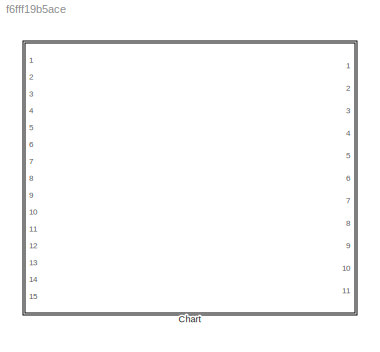
MODEL slx_f6fff19b5ace
KIND model
CONFIG AbsTol = auto
CONFIG FixedStep = auto
CONFIG MaxStep = auto
CONFIG MinStep = auto
CONFIG RelTol = 1e-3
CONFIG SampleTimeConstraint = Unconstrained
CONFIG Solver = VariableStepAuto
CONFIG SolverMode = Auto
CONFIG SolverName = VariableStepAuto
CONFIG StartTime = 0.0
CONFIG StopTime = 10.0
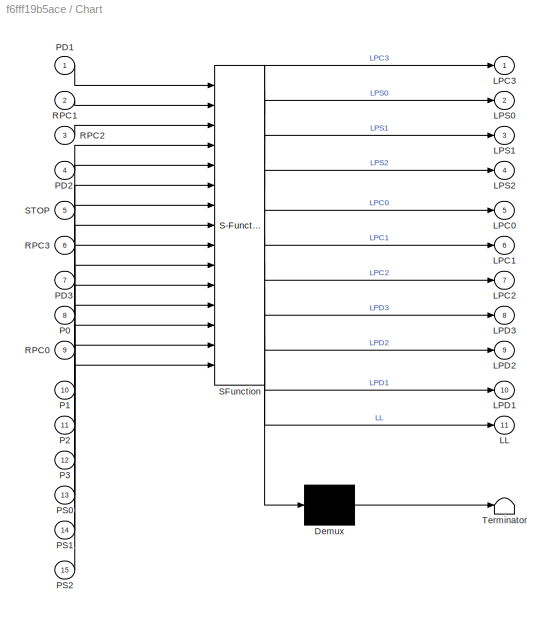
BLOCK [SubSystem] Chart
  ErrorFcn = Stateflow.Translate.translate
  PermitHierarchicalResolution = ExplicitOnly
  Ports = [15, 11]
  RequestExecContextInheritance = off
  SFBlockType = Chart
  TreatAsAtomicUnit = on
  Variant = off
BLOCK [Demux] Chart/ Demux 
  Outputs = 1
  Ports = [1, 1]
BLOCK [S-Function] Chart/ SFunction 
  EnableBusSupport = on
  FunctionName = sf_sfun
  PortCounts = [15 12]
  Ports = [15, 12]
  SFunctionDeploymentMode = off
  Tag = Stateflow S-Function Button_detection_Storage_B 3
BLOCK [Terminator] Chart/ Terminator 
BLOCK [Outport] Chart/LL
  IconDisplay = Port number
  Port = 11
BLOCK [Outport] Chart/LPC0
  IconDisplay = Port number
  Port = 5
BLOCK [Outport] Chart/LPC1
  IconDisplay = Port number
  Port = 6
BLOCK [Outport] Chart/LPC2
  IconDisplay = Port number
  Port = 7
BLOCK [Outport] Chart/LPC3
  IconDisplay = Port number
BLOCK [Outport] Chart/LPD1
  IconDisplay = Port number
  Port = 10
BLOCK [Outport] Chart/LPD2
  IconDisplay = Port number
  Port = 9
BLOCK [Outport] Chart/LPD3
  IconDisplay = Port number
  Port = 8
BLOCK [Outport] Chart/LPS0
  IconDisplay = Port number
  Port = 2
BLOCK [Outport] Chart/LPS1
  IconDisplay = Port number
  Port = 3
BLOCK [Outport] Chart/LPS2
  IconDisplay = Port number
  Port = 4
BLOCK [Inport] Chart/P0
  IconDisplay = Port number
  Port = 8
BLOCK [Inport] Chart/P1
  IconDisplay = Port number
  Port = 10
BLOCK [Inport] Chart/P2
  IconDisplay = Port number
  Port = 11
BLOCK [Inport] Chart/P3
  IconDisplay = Port number
  Port = 12
BLOCK [Inport] Chart/PD1
  IconDisplay = Port number
BLOCK [Inport] Chart/PD2
  IconDisplay = Port number
  Port = 4
BLOCK [Inport] Chart/PD3
  IconDisplay = Port number
  Port = 7
BLOCK [Inport] Chart/PS0
  IconDisplay = Port number
  Port = 13
BLOCK [Inport] Chart/PS1
  IconDisplay = Port number
  Port = 14
BLOCK [Inport] Chart/PS2
  IconDisplay = Port number
  Port = 15
BLOCK [Inport] Chart/RPC0
  IconDisplay = Port number
  Port = 9
BLOCK [Inport] Chart/RPC1
  IconDisplay = Port number
  Port = 2
BLOCK [Inport] Chart/RPC2
  IconDisplay = Port number
  Port = 3
BLOCK [Inport] Chart/RPC3
  IconDisplay = Port number
  Port = 6
BLOCK [Inport] Chart/STOP
  IconDisplay = Port number
  Port = 5
CHART Chart states=64 transitions=283
  STATE_LABEL 'Save_energy\nen:\nLL=not(Q_LL);'
  STATE_LABEL 'Timer_LL'
  STATE_LABEL 'Set_tmr\nen:\nQ_LL=true;'
  STATE_LABEL 'Counting\nen:\nET_LL= ET_LL + 1;\nQ_LL=false;'
  STATE_LABEL 'Set\nen:\nIN_LL=true;\nPT_LL=10;'
  STATE_LABEL '[ET_LL==PT_LL]'
  STATE_LABEL '[ET_LL<PT_LL]'
  STATE_LABEL 'Set_tmr\nen:\nQ_LL=true;'
  STATE_LABEL 'Counting\nen:\nET_LL= ET_LL + 1;\nQ_LL=false;'
  STATE_LABEL 'Set\nen:\nIN_LL=true;\nPT_LL=10;'
  STATE_LABEL 'BUTTON_DOWN'
  STATE_LABEL 'Button_DOWN_1\nen:\nBUTTON_DOWN(2)=true;\nBUT_TEMP=1;\nLPD1=true;\nPUSHED=true;\nUPDATE=false;\nIN_LL=false; ET_LL=0;'
  STATE_LABEL 'First_but_1\nen:\nBUT_1=BUT_TEMP;\nFIRST_BUT=false;'
  STATE_LABEL 'No_button_pushed'
  STATE_LABEL 'Button_DOWN_2\nen:\nBUTTON_DOWN(3)=true;\nBUT_TEMP=2;\nLPD2=true;\nPUSHED=true;\nUPDATE=false;\nIN_LL=false; ET_LL=0;'
  STATE_LABEL 'First_but_2\nen:\nBUT_1=BUT_TEMP;\nFIRST_BUT=false;'
  STATE_LABEL 'Button_DOWN_3\nen:\nBUTTON_DOWN(4)=true;\nBUT_TEMP=3;\nLPD3=true;\nPUSHED=true;\nUPDATE=false;\nIN_LL=false; ET_LL=0;'
  STATE_LABEL 'First_but_3\nen:\nBUT_1=BUT_TEMP;\nFIRST_BUT=false;'
  STATE_LABEL '[PD1]'
  STATE_LABEL '[FIRST_BUT && not(RPC1)]'
  STATE_LABEL '[PD2]'
  STATE_LABEL '[FIRST_BUT && not(RPC2)]'
  STATE_LABEL '[PD3]'
  STATE_LABEL '[FIRST_BUT && not(RPC3)]'
  STATE_LABEL 'Button_DOWN_1\nen:\nBUTTON_DOWN(2)=true;\nBUT_TEMP=1;\nLPD1=true;\nPUSHED=true;\nUPDATE=false;\nIN_LL=false; ET_LL=0;'
  STATE_LABEL 'First_but_1\nen:\nBUT_1=BUT_TEMP;\nFIRST_BUT=false;'
  STATE_LABEL 'No_button_pushed'
  STATE_LABEL 'Button_DOWN_2\nen:\nBUTTON_DOWN(3)=true;\nBUT_TEMP=2;\nLPD2=true;\nPUSHED=true;\nUPDATE=false;\nIN_LL=false; ET_LL=0;'
  STATE_LABEL 'First_but_2\nen:\nBUT_1=BUT_TEMP;\nFIRST_BUT=false;'
  STATE_LABEL 'Button_DOWN_3\nen:\nBUTTON_DOWN(4)=true;\nBUT_TEMP=3;\nLPD3=true;\nPUSHED=true;\nUPDATE=false;\nIN_LL=false; ET_LL=0;'
  STATE_LABEL 'First_but_3\nen:\nBUT_1=BUT_TEMP;\nFIRST_BUT=false;'
  STATE_LABEL 'BUTTON_CAR'
  STATE_LABEL 'Button_CAR_0\nen:\nBUTTON_CAR(1)=true;\nBUT_TEMP=0;\nLPC0=true;\nPUSHED=true;\nUPDATE=false;\nIN_LL=false; ET_LL=0;'
  STATE_LABEL 'First_but_0\nen:\nBUT_1=BUT_TEMP;\nFIRST_BUT=false;'
  STATE_LABEL 'NO_operation'
  STATE_LABEL 'First_but_01\nen:\nBUT_1_CAR=BUT_TEMP;\nFIRST_BUT_CAR=false;'
  STATE_LABEL 'Button_CAR_1\nen:\nBUTTON_CAR(2)=true;\nBUT_TEMP=1;\nLPC1=true;\nPUSHED=true;\nUPDATE=false;\nIN_LL=false; ET_LL=0;'
  STATE_LABEL 'First_but_1\nen:\nBUT_1=BUT_TEMP;\nFIRST_BUT=false;'
  STATE_LABEL 'First_but_02\nen:\nBUT_1_CAR=BUT_TEMP;\nFIRST_BUT_CAR=false;'
  STATE_LABEL 'Button_CAR_2\nen:\nBUTTON_CAR(3)=true;\nBUT_TEMP=2;\nLPC2=true;\nPUSHED=true;\nUPDATE=false;\nIN_LL=false; ET_LL=0;'
